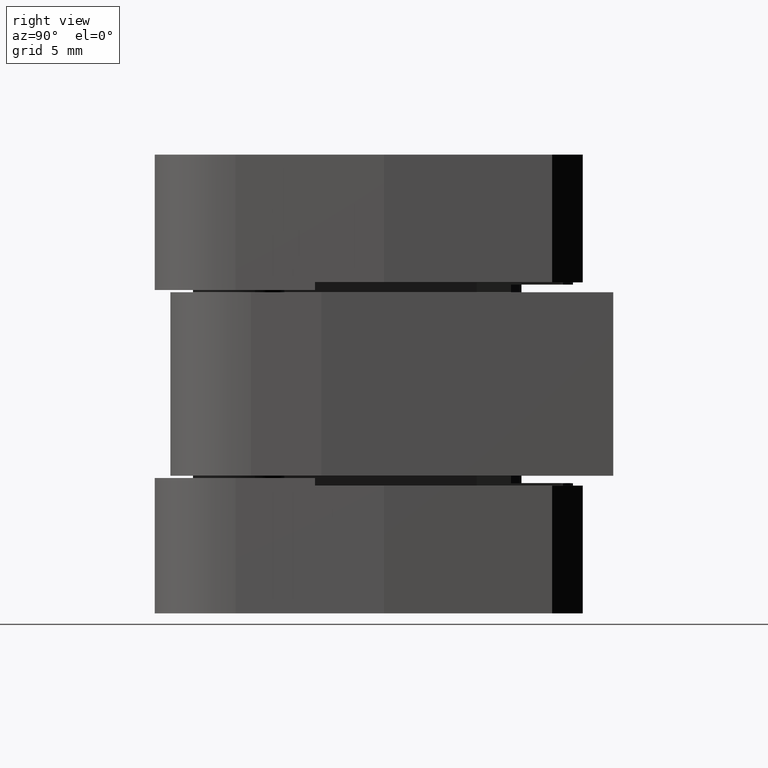
[diagram: clean part render]
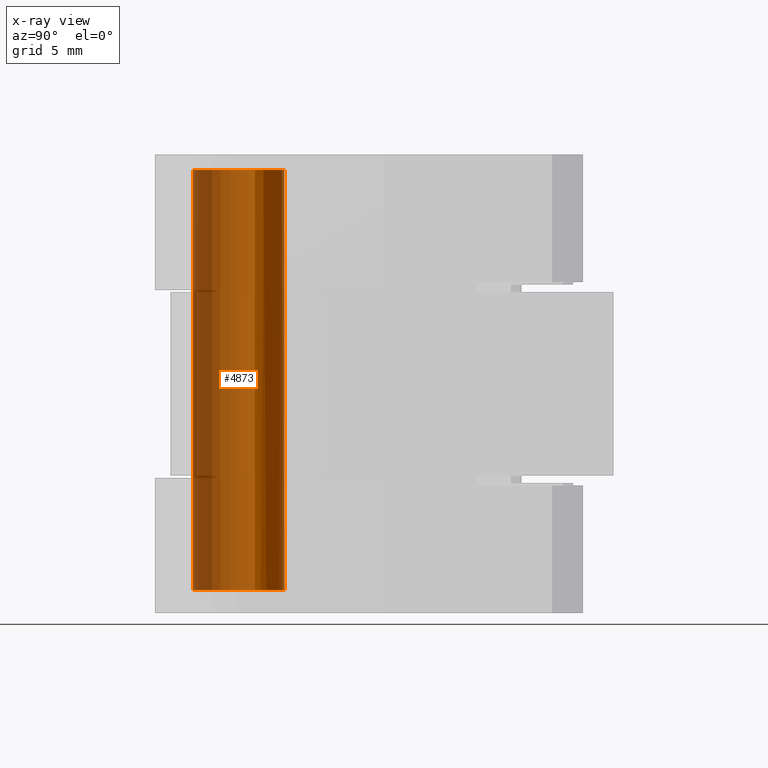
[diagram: x-ray — body ghosted, one internal face saturated and labeled with its STEP entity id]
A machine part, right view, then the same camera in x-ray: the body is ghosted and one INTERNAL B-rep face — a face not visible from any outside direction — is saturated and labeled: STEP entity #4873.
In plain terms, the highlighted face is a freeform B-spline surface patch.
Its self-contained STEP definition (entity closure, byte-faithful):
#4537=CARTESIAN_POINT('',(-3.0,0.0,1.500001424925190));
#4538=VERTEX_POINT('',#4537);
#4539=CARTESIAN_POINT('',(-0.235377287226585,2.990752001201580,1.500001424930757));
#4540=VERTEX_POINT('',#4539);
#4541=CARTESIAN_POINT('',(-3.0,0.0,1.500001424925190));
#4542=CARTESIAN_POINT('',(-3.0,2.773171474895354,1.500001424925191));
#4543=CARTESIAN_POINT('',(-0.235377287226585,2.990752001201580,1.500001424930757));
#4551=(BOUNDED_CURVE()B_SPLINE_CURVE(2,(#4541,#4542,#4543),.UNSPECIFIED.,.F.,.U.)B_SPLINE_CURVE_WITH_KNOTS((3,3),(0.0,0.236331300627882),.UNSPECIFIED.)CURVE()GEOMETRIC_REPRESENTATION_ITEM()RATIONAL_B_SPLINE_CURVE((1.0,0.723120658610920,0.969723356161621))REPRESENTATION_ITEM(''));
#4552=EDGE_CURVE('',#4538,#4540,#4551,.T.);
#4600=CARTESIAN_POINT('',(0.183145618626698,-2.994404395264247,1.500001424925189));
#4601=VERTEX_POINT('',#4600);
#4615=CARTESIAN_POINT('',(0.183145618626698,-2.994404395264248,1.500001424925190));
#4616=CARTESIAN_POINT('',(0.091658289917956,-3.000000000000000,1.500001424925190));
#4617=CARTESIAN_POINT('',(0.0,-3.0,1.500001424925190));
#4618=CARTESIAN_POINT('',(-3.0,-3.0,1.500001424925190));
#4619=CARTESIAN_POINT('',(-3.0,0.0,1.500001424925190));
#4627=(BOUNDED_CURVE()B_SPLINE_CURVE(2,(#4615,#4616,#4617,#4618,#4619),.UNSPECIFIED.,.F.,.U.)B_SPLINE_CURVE_WITH_KNOTS((3,2,3),(0.739332962239418,0.750000000000000,1.0),.UNSPECIFIED.)CURVE()GEOMETRIC_REPRESENTATION_ITEM()RATIONAL_B_SPLINE_CURVE((0.976072041667736,0.987502787900394,1.0,0.707106781186548,1.0))REPRESENTATION_ITEM(''));
#4628=EDGE_CURVE('',#4601,#4538,#4627,.T.);
#4651=CARTESIAN_POINT('',(2.808430736325716,1.054853923186045,1.500001424925191));
#4652=VERTEX_POINT('',#4651);
#4653=CARTESIAN_POINT('',(-0.235377287226585,2.990752001201579,1.500001424930757));
#4654=CARTESIAN_POINT('',(-0.117870321065819,3.000000000000000,1.500001424925190));
#4655=CARTESIAN_POINT('',(0.0,3.0,1.500001424925190));
#4656=CARTESIAN_POINT('',(2.077828787065357,3.000000000000000,1.500001424925191));
#4657=CARTESIAN_POINT('',(2.808430736325717,1.054853923186045,1.500001424925191));
#4665=(BOUNDED_CURVE()B_SPLINE_CURVE(2,(#4653,#4654,#4655,#4656,#4657),.UNSPECIFIED.,.F.,.U.)B_SPLINE_CURVE_WITH_KNOTS((3,2,3),(0.236331300627882,0.250000000000000,0.440284170897635),.UNSPECIFIED.)CURVE()GEOMETRIC_REPRESENTATION_ITEM()RATIONAL_B_SPLINE_CURVE((0.969723356161621,0.983986122575628,1.0,0.777068226786170,0.893499554634207))REPRESENTATION_ITEM(''));
#4666=EDGE_CURVE('',#4540,#4652,#4665,.T.);
#4749=CARTESIAN_POINT('',(2.808430736328719,1.054853923178051,29.000001424925149));
#4750=VERTEX_POINT('',#4749);
#4766=CARTESIAN_POINT('',(0.183145618641831,-2.994404395268263,29.000001424915311));
#4767=VERTEX_POINT('',#4766);
#4781=CARTESIAN_POINT('',(0.183145618641831,-2.994404395268263,29.000001424915311));
#4782=CARTESIAN_POINT('',(0.183145618626698,-2.994404395264247,1.500001424925189));
#4783=QUASI_UNIFORM_CURVE('',1,(#4781,#4782),.UNSPECIFIED.,.F.,.U.);
#4784=EDGE_CURVE('',#4767,#4601,#4783,.T.);
#4789=CARTESIAN_POINT('',(2.808430736328719,1.054853923178051,29.000001424925149));
#4790=CARTESIAN_POINT('',(2.808430736325716,1.054853923186045,1.500001424925191));
#4791=QUASI_UNIFORM_CURVE('',1,(#4789,#4790),.UNSPECIFIED.,.F.,.U.);
#4792=EDGE_CURVE('',#4750,#4652,#4791,.T.);
#4797=CARTESIAN_POINT('',(0.183145618604571,-2.994404395265600,29.687501424925149));
#4798=CARTESIAN_POINT('',(-2.811258776661029,-3.177550013870171,29.687501424925152));
#4799=CARTESIAN_POINT('',(-2.994404395265600,-0.183145618604571,29.687501424925149));
#4800=CARTESIAN_POINT('',(-3.177550013870171,2.811258776661029,29.687501424925152));
#4801=CARTESIAN_POINT('',(-0.183145618604571,2.994404395265600,29.687501424925149));
#4802=CARTESIAN_POINT('',(2.029108745409197,3.129711668608025,29.687501424925156));
#4803=CARTESIAN_POINT('',(2.808430736329971,1.054853923174716,29.687501424925149));
#4804=CARTESIAN_POINT('',(0.183145618604571,-2.994404395265600,0.795313924925189));
#4805=CARTESIAN_POINT('',(-2.811258776661029,-3.177550013870171,0.795313924925189));
#4806=CARTESIAN_POINT('',(-2.994404395265600,-0.183145618604571,0.795313924925189));
#4807=CARTESIAN_POINT('',(-3.177550013870171,2.811258776661029,0.795313924925189));
#4808=CARTESIAN_POINT('',(-0.183145618604571,2.994404395265600,0.795313924925189));
#4809=CARTESIAN_POINT('',(2.029108745409197,3.129711668608025,0.795313924925189));
#4810=CARTESIAN_POINT('',(2.808430736329971,1.054853923174716,0.795313924925189));
#4818=(BOUNDED_SURFACE()B_SPLINE_SURFACE(2,1,((#4797,#4804),(#4798,#4805),(#4799,#4806),(#4800,#4807),(#4801,#4808),(#4802,#4809),(#4803,#4810)),.UNSPECIFIED.,.F.,.F.,.U.)B_SPLINE_SURFACE_WITH_KNOTS((3,2,2,3),(2,2),(0.0,4.970562748477139,9.941125496954278,13.917575695735991),(0.0,28.892187499999970),.UNSPECIFIED.)GEOMETRIC_REPRESENTATION_ITEM()RATIONAL_B_SPLINE_SURFACE(((1.0,1.0),(0.707106781186548,0.707106781186548),(1.0,1.0),(0.707106781186548,0.707106781186548),(1.0,1.0),(0.765685424949238,0.765685424949238),(0.906274169979695,0.906274169979695)))REPRESENTATION_ITEM('')SURFACE());
#4819=CARTESIAN_POINT('',(-0.354102704033110,2.979028579091498,29.000001424917262));
#4820=VERTEX_POINT('',#4819);
#4821=CARTESIAN_POINT('',(-0.354102704033110,2.979028579091499,29.000001424917258));
#4822=CARTESIAN_POINT('',(-0.177672359018285,3.000000000000000,29.000001424925149));
#4823=CARTESIAN_POINT('',(0.0,3.0,29.000001424925149));
#4824=CARTESIAN_POINT('',(2.077828787077994,3.0,29.000001424925145));
#4825=CARTESIAN_POINT('',(2.808430736328720,1.054853923178051,29.000001424925152));
#4833=(BOUNDED_CURVE()B_SPLINE_CURVE(2,(#4821,#4822,#4823,#4824,#4825),.UNSPECIFIED.,.F.,.U.)B_SPLINE_CURVE_WITH_KNOTS((3,2,3),(0.229562473508621,0.250000000000000,0.440284170898535),.UNSPECIFIED.)CURVE()GEOMETRIC_REPRESENTATION_ITEM()RATIONAL_B_SPLINE_CURVE((0.956026754174120,0.976055948325419,1.0,0.777068226785116,0.893499554635307))REPRESENTATION_ITEM(''));
#4834=EDGE_CURVE('',#4820,#4750,#4833,.T.);
#4835=ORIENTED_EDGE('',*,*,#4834,.T.);
#4836=ORIENTED_EDGE('',*,*,#4792,.T.);
#4837=ORIENTED_EDGE('',*,*,#4666,.F.);
#4838=ORIENTED_EDGE('',*,*,#4552,.F.);
#4839=ORIENTED_EDGE('',*,*,#4628,.F.);
#4840=ORIENTED_EDGE('',*,*,#4784,.F.);
#4841=CARTESIAN_POINT('',(-3.0,0.0,29.000001424925149));
#4842=VERTEX_POINT('',#4841);
#4843=CARTESIAN_POINT('',(0.183145618641831,-2.994404395268263,29.000001424915308));
#4844=CARTESIAN_POINT('',(0.091658289969892,-3.000000000000001,29.000001424925149));
#4845=CARTESIAN_POINT('',(0.0,-3.0,29.000001424925149));
#4846=CARTESIAN_POINT('',(-3.0,-3.0,29.000001424925141));
#4847=CARTESIAN_POINT('',(-3.0,0.0,29.000001424925149));
#4855=(BOUNDED_CURVE()B_SPLINE_CURVE(2,(#4843,#4844,#4845,#4846,#4847),.UNSPECIFIED.,.F.,.U.)B_SPLINE_CURVE_WITH_KNOTS((3,2,3),(0.739332962233450,0.750000000000000,1.0),.UNSPECIFIED.)CURVE()GEOMETRIC_REPRESENTATION_ITEM()RATIONAL_B_SPLINE_CURVE((0.976072041654944,0.987502787893402,1.0,0.707106781186548,1.0))REPRESENTATION_ITEM(''));
#4856=EDGE_CURVE('',#4767,#4842,#4855,.T.);
#4857=ORIENTED_EDGE('',*,*,#4856,.T.);
#4858=CARTESIAN_POINT('',(-3.0,0.0,29.000001424925149));
#4859=CARTESIAN_POINT('',(-3.000000000000001,2.664523577742592,29.000001424925145));
#4860=CARTESIAN_POINT('',(-0.354102704033110,2.979028579091498,29.000001424917265));
#4868=(BOUNDED_CURVE()B_SPLINE_CURVE(2,(#4858,#4859,#4860),.UNSPECIFIED.,.F.,.U.)B_SPLINE_CURVE_WITH_KNOTS((3,3),(0.0,0.229562473508621),.UNSPECIFIED.)CURVE()GEOMETRIC_REPRESENTATION_ITEM()RATIONAL_B_SPLINE_CURVE((1.0,0.731050832861128,0.956026754174120))REPRESENTATION_ITEM(''));
#4869=EDGE_CURVE('',#4842,#4820,#4868,.T.);
#4870=ORIENTED_EDGE('',*,*,#4869,.T.);
#4871=EDGE_LOOP('',(#4835,#4836,#4837,#4838,#4839,#4840,#4857,#4870));
#4872=FACE_OUTER_BOUND('',#4871,.T.);
#4873=ADVANCED_FACE('',(#4872),#4818,.T.);